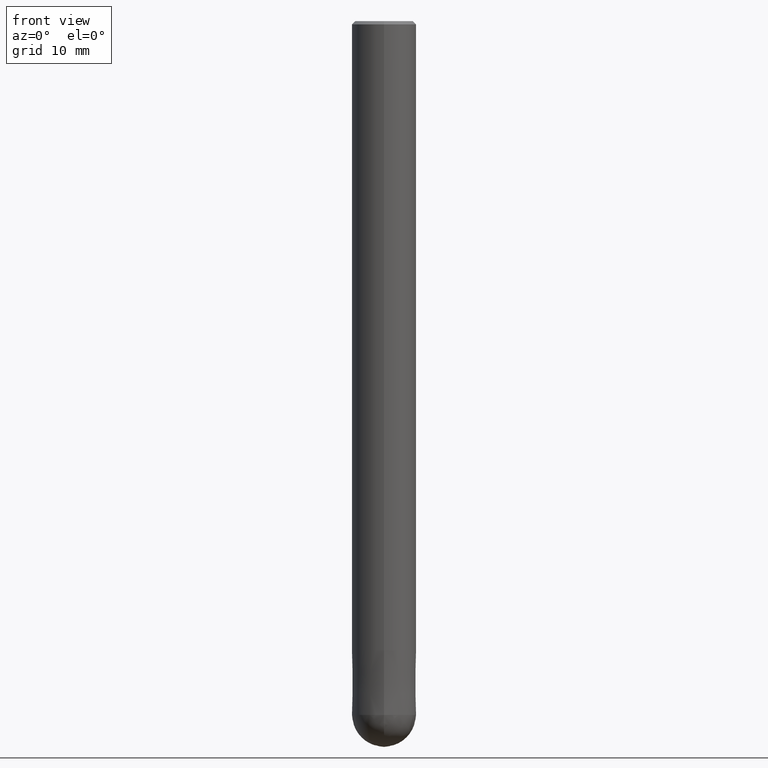
[diagram: clean part render]
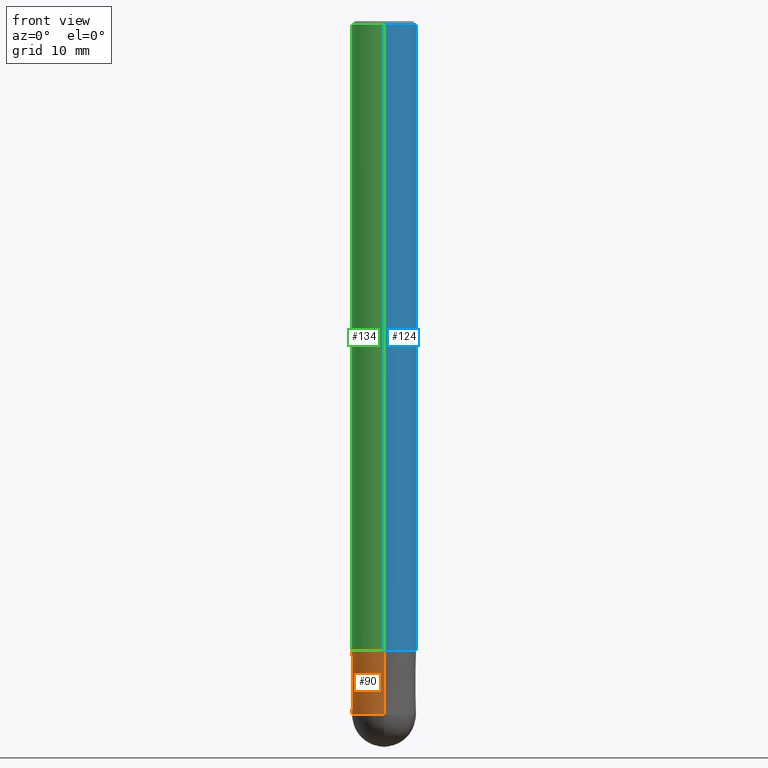
[diagram: same view with three faces highlighted in distinct colors, each labeled with its STEP entity id]
A machine part, front view with three faces highlighted in distinct colors.
Their STEP definitions:

[orange] entity #90 — the highlighted conical surface has half-angle 0.001 deg.
#72=VERTEX_POINT('',#168);
#80=VERTEX_POINT('',#177);
#82=VERTEX_POINT('',#179);
#90=ADVANCED_FACE('',(#187),#188,.T.);
#110=EDGE_CURVE('',#82,#80,#210,.T.);
#118=EDGE_CURVE('',#80,#128,#218,.T.);
#120=EDGE_CURVE('',#82,#72,#220,.T.);
#128=VERTEX_POINT('',#230);
#130=EDGE_CURVE('',#128,#72,#232,.T.);
#168=CARTESIAN_POINT('',(0.0,4.0,-86.0));
#177=CARTESIAN_POINT('',(4.89830295465413E-016,-3.9999,-78.0));
#179=CARTESIAN_POINT('',(4.89842541528951E-016,-4.0,-86.0));
#187=FACE_OUTER_BOUND('',#286,.T.);
#188=CONICAL_SURFACE('',#287,3.99995,1.24999999993753E-005);
#210=LINE('',#315,#316);
#218=CIRCLE('',#329,3.9999);
#220=CIRCLE('',#332,4.0);
#230=CARTESIAN_POINT('',(0.0,3.9999,-78.0));
#232=LINE('',#344,#345);
#286=EDGE_LOOP('',(#398,#399,#400,#401));
#287=AXIS2_PLACEMENT_3D('',#402,#403,#404);
#315=CARTESIAN_POINT('',(4.89836418497182E-016,-3.99995,-82.0));
#316=VECTOR('',#431,1.0);
#329=AXIS2_PLACEMENT_3D('',#439,#440,#441);
#332=AXIS2_PLACEMENT_3D('',#442,#443,#444);
#344=CARTESIAN_POINT('',(-4.89836418497182E-016,3.99995,-82.0));
#345=VECTOR('',#460,1.0);
#398=ORIENTED_EDGE('',*,*,#130,.T.);
#399=ORIENTED_EDGE('',*,*,#120,.F.);
#400=ORIENTED_EDGE('',*,*,#110,.T.);
#401=ORIENTED_EDGE('',*,*,#118,.T.);
#402=CARTESIAN_POINT('',(0.0,0.0,-82.0));
#403=DIRECTION('',(0.0,-0.0,-1.0));
#404=DIRECTION('',(0.0,1.0,0.0));
#431=DIRECTION('',(-1.53075794216161E-021,1.24999999990498E-005,0.999999999921875));
#439=CARTESIAN_POINT('',(0.0,0.0,-78.0));
#440=DIRECTION('',(0.0,0.0,-1.0));
#441=DIRECTION('',(0.0,1.0,0.0));
#442=CARTESIAN_POINT('',(0.0,0.0,-86.0));
#443=DIRECTION('',(0.0,0.0,-1.0));
#444=DIRECTION('',(0.0,1.0,0.0));
#460=DIRECTION('',(-1.53075794216161E-021,1.24999999990498E-005,-0.999999999921875));

[blue] entity #124 — the highlighted cylindrical surface (edge-blend (fillet) strip) has radius 4 mm, axis along (-0, -0, 1).
#64=EDGE_CURVE('',#76,#74,#158,.T.);
#74=VERTEX_POINT('',#170);
#76=VERTEX_POINT('',#172);
#86=EDGE_CURVE('',#74,#102,#183,.T.);
#92=EDGE_CURVE('',#100,#76,#190,.T.);
#100=VERTEX_POINT('',#200);
#102=VERTEX_POINT('',#202);
#112=EDGE_CURVE('',#100,#102,#212,.T.);
#124=ADVANCED_FACE('',(#224),#225,.T.);
#158=CIRCLE('',#252,4.0);
#170=CARTESIAN_POINT('',(4.89842541528951E-016,-4.0,-78.0));
#172=CARTESIAN_POINT('',(0.0,4.0,-78.0));
#183=LINE('',#280,#281);
#190=LINE('',#290,#291);
#200=CARTESIAN_POINT('',(0.0,4.0,-0.400000000000006));
#202=CARTESIAN_POINT('',(4.89842541528951E-016,-4.0,-0.400000000000006));
#212=CIRCLE('',#319,4.0);
#224=FACE_OUTER_BOUND('',#335,.T.);
#225=CYLINDRICAL_SURFACE('',#336,4.0);
#252=AXIS2_PLACEMENT_3D('',#364,#365,#366);
#280=CARTESIAN_POINT('',(4.89842541528951E-016,-4.0,-39.2));
#281=VECTOR('',#393,1.0);
#290=CARTESIAN_POINT('',(-4.89842541528951E-016,4.0,-39.2));
#291=VECTOR('',#405,1.0);
#319=AXIS2_PLACEMENT_3D('',#432,#433,#434);
#335=EDGE_LOOP('',(#447,#448,#449,#450));
#336=AXIS2_PLACEMENT_3D('',#451,#452,#453);
#364=CARTESIAN_POINT('',(0.0,0.0,-78.0));
#365=DIRECTION('',(0.0,0.0,-1.0));
#366=DIRECTION('',(0.0,1.0,0.0));
#393=DIRECTION('',(-0.0,-0.0,1.0));
#405=DIRECTION('',(0.0,0.0,-1.0));
#432=CARTESIAN_POINT('',(0.0,0.0,-0.400000000000006));
#433=DIRECTION('',(0.0,0.0,-1.0));
#434=DIRECTION('',(0.0,1.0,0.0));
#447=ORIENTED_EDGE('',*,*,#92,.F.);
#448=ORIENTED_EDGE('',*,*,#112,.T.);
#449=ORIENTED_EDGE('',*,*,#86,.F.);
#450=ORIENTED_EDGE('',*,*,#64,.F.);
#451=CARTESIAN_POINT('',(0.0,0.0,-39.2));
#452=DIRECTION('',(-0.0,-0.0,1.0));
#453=DIRECTION('',(0.0,1.0,0.0));

[green] entity #134 — the highlighted cylindrical surface (edge-blend (fillet) strip) has radius 4 mm, axis along (-0, -0, 1).
#66=EDGE_CURVE('',#102,#100,#160,.T.);
#74=VERTEX_POINT('',#170);
#76=VERTEX_POINT('',#172);
#86=EDGE_CURVE('',#74,#102,#183,.T.);
#92=EDGE_CURVE('',#100,#76,#190,.T.);
#100=VERTEX_POINT('',#200);
#102=VERTEX_POINT('',#202);
#116=EDGE_CURVE('',#74,#76,#216,.T.);
#134=ADVANCED_FACE('',(#236),#237,.T.);
#160=CIRCLE('',#255,4.0);
#170=CARTESIAN_POINT('',(4.89842541528951E-016,-4.0,-78.0));
#172=CARTESIAN_POINT('',(0.0,4.0,-78.0));
#183=LINE('',#280,#281);
#190=LINE('',#290,#291);
#200=CARTESIAN_POINT('',(0.0,4.0,-0.400000000000006));
#202=CARTESIAN_POINT('',(4.89842541528951E-016,-4.0,-0.400000000000006));
#216=CIRCLE('',#326,4.0);
#236=FACE_OUTER_BOUND('',#349,.T.);
#237=CYLINDRICAL_SURFACE('',#350,4.0);
#255=AXIS2_PLACEMENT_3D('',#367,#368,#369);
#280=CARTESIAN_POINT('',(4.89842541528951E-016,-4.0,-39.2));
#281=VECTOR('',#393,1.0);
#290=CARTESIAN_POINT('',(-4.89842541528951E-016,4.0,-39.2));
#291=VECTOR('',#405,1.0);
#326=AXIS2_PLACEMENT_3D('',#436,#437,#438);
#349=EDGE_LOOP('',(#462,#463,#464,#465));
#350=AXIS2_PLACEMENT_3D('',#466,#467,#468);
#367=CARTESIAN_POINT('',(0.0,0.0,-0.400000000000006));
#368=DIRECTION('',(0.0,0.0,-1.0));
#369=DIRECTION('',(0.0,1.0,0.0));
#393=DIRECTION('',(-0.0,-0.0,1.0));
#405=DIRECTION('',(0.0,0.0,-1.0));
#436=CARTESIAN_POINT('',(0.0,0.0,-78.0));
#437=DIRECTION('',(0.0,0.0,-1.0));
#438=DIRECTION('',(0.0,1.0,0.0));
#462=ORIENTED_EDGE('',*,*,#92,.T.);
#463=ORIENTED_EDGE('',*,*,#116,.F.);
#464=ORIENTED_EDGE('',*,*,#86,.T.);
#465=ORIENTED_EDGE('',*,*,#66,.T.);
#466=CARTESIAN_POINT('',(0.0,0.0,-39.2));
#467=DIRECTION('',(-0.0,-0.0,1.0));
#468=DIRECTION('',(0.0,1.0,0.0));